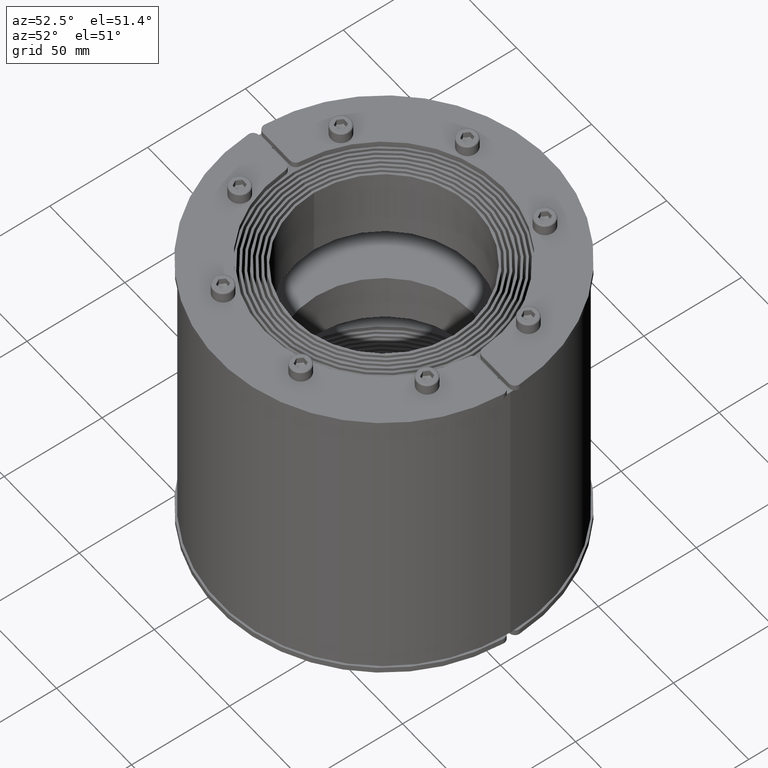
[diagram: clean part render]
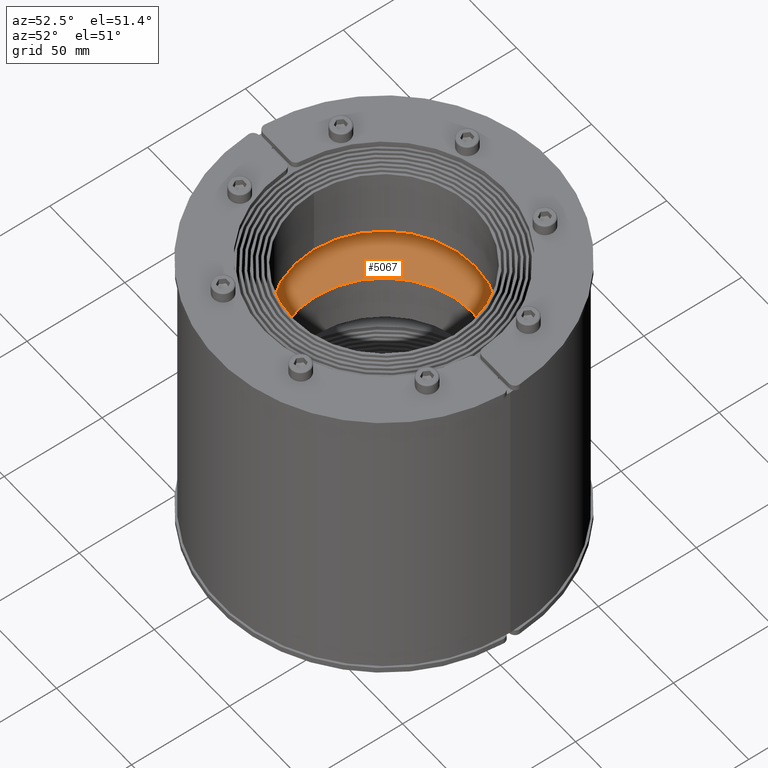
[diagram: same view with one face highlighted and labeled with its STEP entity id]
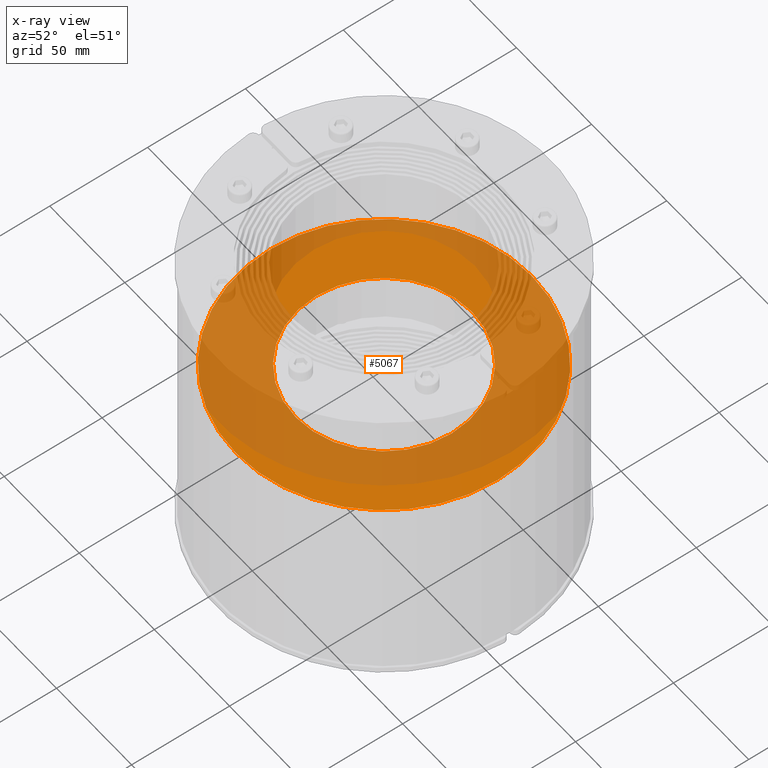
[diagram: x-ray of the same camera — body ghosted, the highlighted face saturated]
A machine part, auxiliary view. The second image highlights one B-rep face of the part: STEP entity #5067.
The next image is the same camera in x-ray: the body ghosted, the highlighted face saturated — about 69% of this face is hidden behind the body in this view.
In plain terms, the highlighted planar face has unit normal (-0, 0, 1).
Its self-contained STEP definition (entity closure, byte-faithful):
#4929=CARTESIAN_POINT('',(0.0,45.0,12.500000000000000));
#4930=VERTEX_POINT('',#4929);
#4946=CARTESIAN_POINT('',(-5.510729E-015,-45.0,12.500000000000000));
#4947=VERTEX_POINT('',#4946);
#4954=CARTESIAN_POINT('',(0.0,0.0,12.500000000000000));
#4955=DIRECTION('',(0.0,0.0,1.0));
#4956=DIRECTION('',(0.0,1.0,0.0));
#4957=AXIS2_PLACEMENT_3D('',#4954,#4955,#4956);
#4958=CIRCLE('',#4957,45.0);
#4959=EDGE_CURVE('',#4947,#4930,#4958,.T.);
#4971=CARTESIAN_POINT('',(0.0,75.500000000000000,12.500000000000000));
#4972=VERTEX_POINT('',#4971);
#4988=CARTESIAN_POINT('',(-9.245778E-015,-75.500000000000000,12.500000000000000));
#4989=VERTEX_POINT('',#4988);
#4996=CARTESIAN_POINT('',(0.0,0.0,12.500000000000000));
#4997=DIRECTION('',(0.0,0.0,-1.0));
#4998=DIRECTION('',(0.0,1.0,0.0));
#4999=AXIS2_PLACEMENT_3D('',#4996,#4997,#4998);
#5000=CIRCLE('',#4999,75.500000000000000);
#5001=EDGE_CURVE('',#4989,#4972,#5000,.T.);
#5012=CARTESIAN_POINT('',(0.0,0.0,12.500000000000000));
#5013=DIRECTION('',(0.0,0.0,-1.0));
#5014=DIRECTION('',(0.0,1.0,0.0));
#5015=AXIS2_PLACEMENT_3D('',#5012,#5013,#5014);
#5016=CIRCLE('',#5015,75.500000000000000);
#5017=EDGE_CURVE('',#4972,#4989,#5016,.T.);
#5036=CARTESIAN_POINT('',(0.0,0.0,12.500000000000000));
#5037=DIRECTION('',(0.0,0.0,1.0));
#5038=DIRECTION('',(0.0,1.0,0.0));
#5039=AXIS2_PLACEMENT_3D('',#5036,#5037,#5038);
#5040=CIRCLE('',#5039,45.0);
#5041=EDGE_CURVE('',#4930,#4947,#5040,.T.);
#5054=CARTESIAN_POINT('',(0.0,0.0,12.500000000000000));
#5055=DIRECTION('',(0.0,0.0,1.0));
#5056=DIRECTION('',(0.0,1.0,0.0));
#5057=AXIS2_PLACEMENT_3D('',#5054,#5055,#5056);
#5058=PLANE('',#5057);
#5059=ORIENTED_EDGE('',*,*,#5017,.F.);
#5060=ORIENTED_EDGE('',*,*,#5001,.F.);
#5061=EDGE_LOOP('',(#5059,#5060));
#5062=FACE_OUTER_BOUND('',#5061,.T.);
#5063=ORIENTED_EDGE('',*,*,#5041,.F.);
#5064=ORIENTED_EDGE('',*,*,#4959,.F.);
#5065=EDGE_LOOP('',(#5063,#5064));
#5066=FACE_BOUND('',#5065,.T.);
#5067=ADVANCED_FACE('',(#5062,#5066),#5058,.T.);